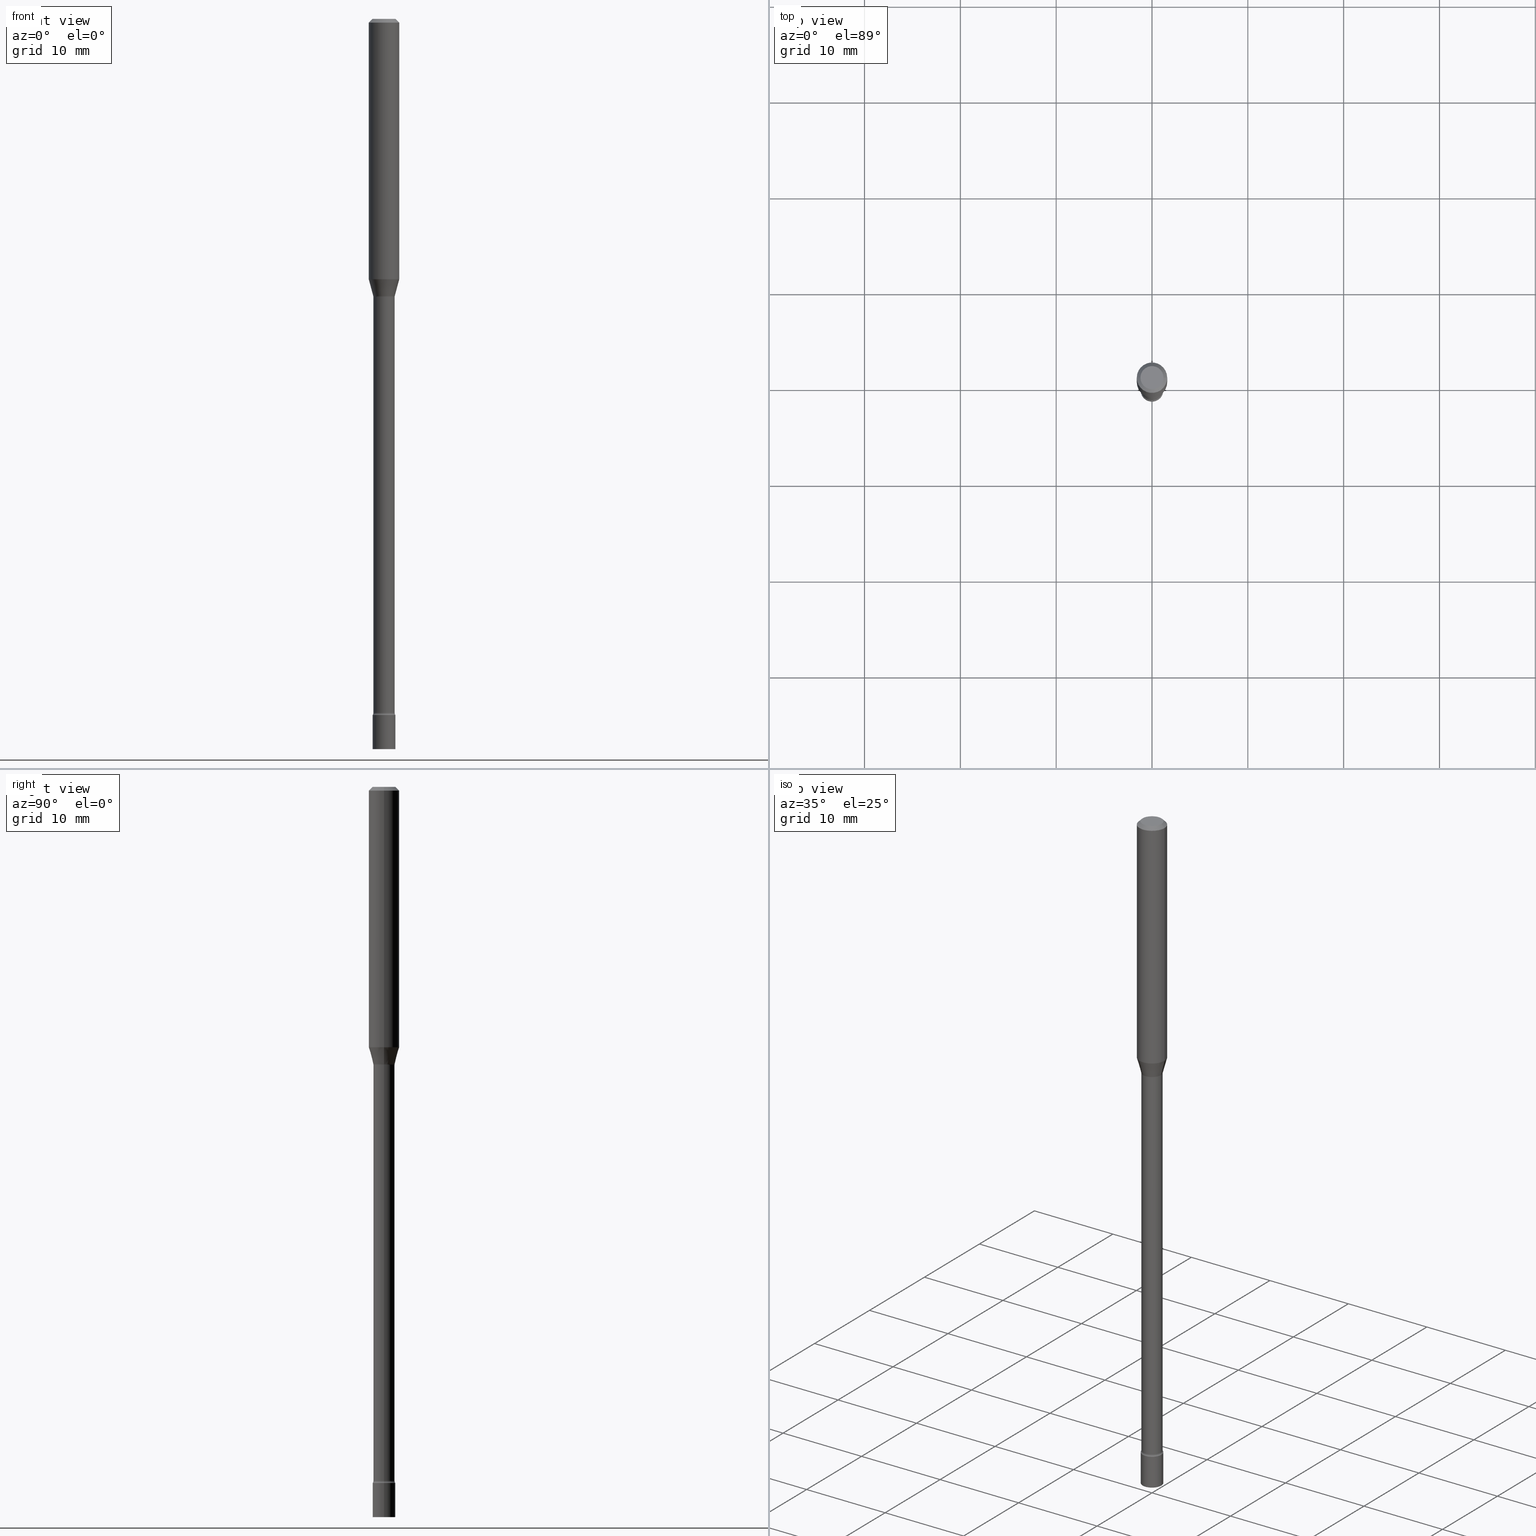
[diagram: canonical four-view strip — front | top / right | iso, engineering-drawing reading convention]
A machine part, canonical four-view strip (front | top / right | iso — engineering-drawing reading convention). The complete STEP part file that produces these views, byte-faithful:
ISO-10303-21;
HEADER;
FILE_DESCRIPTION (( 'STEP AP203' ),
    '1' );
FILE_NAME ('09744.STEP',
    '2024-03-09T01:33:44',
    ( '' ),
    ( '' ),
    'SwSTEP 2.0',
    'SolidWorks 2023',
    '' );
FILE_SCHEMA (( 'CONFIG_CONTROL_DESIGN' ));
ENDSEC;

DATA;
#1 = FACE_OUTER_BOUND ( 'NONE', #342, .T. ) ;
#2 = TOROIDAL_SURFACE ( 'NONE', #481, 0.05870000000000015483, 0.01499999999999998383 ) ;
#3 = CARTESIAN_POINT ( 'NONE',  ( -0.04421111260566398110, -3.659489882849310223E-15, -1.138092501787273170 ) ) ;
#4 = CC_DESIGN_DATE_AND_TIME_ASSIGNMENT ( #75, #158, ( #305 ) ) ;
#5 = ADVANCED_FACE ( 'NONE', ( #418 ), #59, .T. ) ;
#6 = EDGE_CURVE ( 'NONE', #29, #120, #460, .T. ) ;
#7 = AXIS2_PLACEMENT_3D ( 'NONE', #311, #399, #317 ) ;
#8 = ORIENTED_EDGE ( 'NONE', *, *, #85, .T. ) ;
#9 = ORIENTED_EDGE ( 'NONE', *, *, #20, .F. ) ;
#10 = ADVANCED_FACE ( 'NONE', ( #147 ), #318, .F. ) ;
#11 = LINE ( 'NONE', #404, #208 ) ;
#12 = DIRECTION ( 'NONE',  ( -2.445468806185136597E-29, 3.491481338843145583E-15, 1.000000000000000000 ) ) ;
#13 = CC_DESIGN_PERSON_AND_ORGANIZATION_ASSIGNMENT ( #146, #306, ( #302 ) ) ;
#14 = VECTOR ( 'NONE', #493, 39.37007874015748143 ) ;
#15 =( GEOMETRIC_REPRESENTATION_CONTEXT ( 3 ) GLOBAL_UNCERTAINTY_ASSIGNED_CONTEXT ( ( #328 ) ) GLOBAL_UNIT_ASSIGNED_CONTEXT ( ( #93, #58, #55 ) ) REPRESENTATION_CONTEXT ( 'NONE', 'WORKASPACE' ) );
#16 = DIRECTION ( 'NONE',  ( -2.445468806185136597E-29, 3.491481338843145583E-15, 1.000000000000000000 ) ) ;
#17 = ADVANCED_FACE ( 'NONE', ( #118 ), #337, .T. ) ;
#18 = DIRECTION ( 'NONE',  ( 1.000000000000000000, -6.982962677686267499E-15, 4.876176775795936353E-29 ) ) ;
#19 = ORIENTED_EDGE ( 'NONE', *, *, #109, .F. ) ;
#20 = EDGE_CURVE ( 'NONE', #179, #245, #271, .T. ) ;
#21 = CARTESIAN_POINT ( 'NONE',  ( -0.06250000000000000000, -1.449755637279586850E-15, -0.01500000000000003067 ) ) ;
#22 = DIRECTION ( 'NONE',  ( 1.000000000000000000, -6.982962677686270655E-15, 0.000000000000000000 ) ) ;
#23 = ORIENTED_EDGE ( 'NONE', *, *, #308, .F. ) ;
#24 = AXIS2_PLACEMENT_3D ( 'NONE', #61, #107, #25 ) ;
#25 = DIRECTION ( 'NONE',  ( -1.000000000000000000, 6.982962677686266711E-15, 0.000000000000000000 ) ) ;
#26 = ORIENTED_EDGE ( 'NONE', *, *, #437, .T. ) ;
#27 = DIRECTION ( 'NONE',  ( -2.445468806185136597E-29, 3.491481338843145583E-15, 1.000000000000000000 ) ) ;
#28 = ORIENTED_EDGE ( 'NONE', *, *, #308, .T. ) ;
#29 = VERTEX_POINT ( 'NONE', #40 ) ;
#30 = CIRCLE ( 'NONE', #234, 0.04649999999999999967 ) ;
#31 = DIRECTION ( 'NONE',  ( -0.7071067811865475727, 2.468850131082257455E-15, -0.7071067811865474617 ) ) ;
#32 = APPROVAL_ROLE ( '' ) ;
#33 = AXIS2_PLACEMENT_3D ( 'NONE', #408, #299, #172 ) ;
#34 = CARTESIAN_POINT ( 'NONE',  ( 2.783169711673978620E-29, -3.973628731867573835E-15, -1.138092501787273170 ) ) ;
#35 = CARTESIAN_POINT ( 'NONE',  ( 6.994040785689491519E-29, -9.985636629091396422E-15, -2.859999999999999876 ) ) ;
#36 = EDGE_CURVE ( 'NONE', #91, #214, #283, .T. ) ;
#37 = CALENDAR_DATE ( 2024, 8, 3 ) ;
#38 = DIRECTION ( 'NONE',  ( -2.438088387897960049E-29, 3.491481338843145188E-15, 1.000000000000000000 ) ) ;
#39 = CALENDAR_DATE ( 2024, 8, 3 ) ;
#40 = CARTESIAN_POINT ( 'NONE',  ( -0.04749999999999999362, 3.578768372314209027E-16, -2.891391092787141902E-17 ) ) ;
#41 = APPROVAL_ROLE ( '' ) ;
#42 = TOROIDAL_SURFACE ( 'NONE', #326, 0.05870000000000015483, 0.01499999999999998383 ) ;
#43 = CC_DESIGN_APPROVAL ( #355, ( #305 ) ) ;
#44 = DATE_TIME_ROLE ( 'creation_date' ) ;
#45 = PERSON_AND_ORGANIZATION ( #343, #125 ) ;
#46 = DIRECTION ( 'NONE',  ( -1.000000000000000000, 7.105427357600993970E-15, 0.000000000000000000 ) ) ;
#47 = FACE_OUTER_BOUND ( 'NONE', #336, .T. ) ;
#48 = AXIS2_PLACEMENT_3D ( 'NONE', #257, #49, #505 ) ;
#49 = DIRECTION ( 'NONE',  ( -2.445468806185136597E-29, 3.491481338843145583E-15, 1.000000000000000000 ) ) ;
#50 = VERTEX_POINT ( 'NONE', #357 ) ;
#51 = EDGE_CURVE ( 'NONE', #511, #341, #425, .T. ) ;
#52 = DIRECTION ( 'NONE',  ( -2.438088387897960049E-29, 3.491481338843145188E-15, 1.000000000000000000 ) ) ;
#53 = EDGE_CURVE ( 'NONE', #383, #468, #11, .T. ) ;
#54 = DIRECTION ( 'NONE',  ( 1.000000000000000000, -6.982962677686266711E-15, 4.876176775795935793E-29 ) ) ;
#55 =( NAMED_UNIT ( * ) SI_UNIT ( $, .STERADIAN. ) SOLID_ANGLE_UNIT ( ) );
#56 = TOROIDAL_SURFACE ( 'NONE', #114, 0.05870000000000000218, 0.01499999999999999424 ) ;
#57 = CARTESIAN_POINT ( 'NONE',  ( -0.05870000000000000218, -3.570095073968085005E-15, -1.141974787463811092 ) ) ;
#58 =( NAMED_UNIT ( * ) PLANE_ANGLE_UNIT ( ) SI_UNIT ( $, .RADIAN. ) );
#59 = CYLINDRICAL_SURFACE ( 'NONE', #319, 0.04370000000000008600 ) ;
#60 = APPROVAL ( #236, 'UNSPECIFIED' ) ;
#61 = CARTESIAN_POINT ( 'NONE',  ( 3.668203209277712094E-31, -5.237222008264728876E-17, -0.01500000000000003067 ) ) ;
#62 = DIRECTION ( 'NONE',  ( 1.000000000000000000, -6.982962677686265922E-15, 4.883557194083112901E-29 ) ) ;
#63 = ORIENTED_EDGE ( 'NONE', *, *, #401, .T. ) ;
#64 = CARTESIAN_POINT ( 'NONE',  ( 0.05870000000000015483, -1.036506648644833133E-14, -2.851273030308291823 ) ) ;
#65 = ORIENTED_EDGE ( 'NONE', *, *, #363, .F. ) ;
#66 = DESIGN_CONTEXT ( 'detailed design', #101, 'design' ) ;
#67 = LINE ( 'NONE', #348, #497 ) ;
#68 = DIRECTION ( 'NONE',  ( -2.445468806185136597E-29, 3.491481338843145583E-15, 1.000000000000000000 ) ) ;
#69 = EDGE_CURVE ( 'NONE', #50, #266, #74, .T. ) ;
#70 = ORIENTED_EDGE ( 'NONE', *, *, #51, .T. ) ;
#71 = DIRECTION ( 'NONE',  ( 1.000000000000000000, -6.982962677686280121E-15, 0.000000000000000000 ) ) ;
#72 = CARTESIAN_POINT ( 'NONE',  ( -0.04649999999999999273, -9.655234256962948358E-15, -2.859999999999999876 ) ) ;
#73 = CARTESIAN_POINT ( 'NONE',  ( 6.972699253535895201E-29, -9.955166577268146515E-15, -2.851273030308291823 ) ) ;
#74 = CIRCLE ( 'NONE', #33, 0.04370000000000016926 ) ;
#75 = DATE_AND_TIME ( #39, #415 ) ;
#76 = APPROVAL_DATE_TIME ( #397, #60 ) ;
#77 = CIRCLE ( 'NONE', #320, 0.04421111260566398110 ) ;
#78 = ORIENTED_EDGE ( 'NONE', *, *, #385, .F. ) ;
#79 = DIRECTION ( 'NONE',  ( -2.445468806185136877E-29, 3.491481338843145188E-15, 1.000000000000000000 ) ) ;
#80 = LINE ( 'NONE', #324, #14 ) ;
#81 = DIRECTION ( 'NONE',  ( -2.445468806185136597E-29, 3.491481338843145583E-15, 1.000000000000000000 ) ) ;
#82 = AXIS2_PLACEMENT_3D ( 'NONE', #34, #512, #261 ) ;
#83 = LOCAL_TIME ( 20, 33, 44.00000000000000000, #446 ) ;
#84 = EDGE_LOOP ( 'NONE', ( #65, #227, #211, #226 ) ) ;
#85 = EDGE_CURVE ( 'NONE', #468, #298, #189, .T. ) ;
#86 = CARTESIAN_POINT ( 'NONE',  ( 6.994040785689491519E-29, -9.985636629091396422E-15, -2.859999999999999876 ) ) ;
#87 = ORIENTED_EDGE ( 'NONE', *, *, #363, .T. ) ;
#88 = ADVANCED_FACE ( 'NONE', ( #419 ), #338, .T. ) ;
#89 = LINE ( 'NONE', #448, #244 ) ;
#90 = DIRECTION ( 'NONE',  ( -2.445468806185136597E-29, 3.491481338843145583E-15, 1.000000000000000000 ) ) ;
#91 = VERTEX_POINT ( 'NONE', #184 ) ;
#92 = APPLICATION_CONTEXT ( 'configuration controlled 3d designs of mechanical parts and assemblies' ) ;
#93 =( CONVERSION_BASED_UNIT ( 'INCH', #295 ) LENGTH_UNIT ( ) NAMED_UNIT ( #220 ) );
#94 = ORIENTED_EDGE ( 'NONE', *, *, #163, .F. ) ;
#95 = CIRCLE ( 'NONE', #160, 0.04370000000000000273 ) ;
#96 = CARTESIAN_POINT ( 'NONE',  ( 2.616254098990511009E-29, -3.735317474176651459E-15, -1.069837444817705263 ) ) ;
#97 = DIRECTION ( 'NONE',  ( -2.445468806185136597E-29, 3.491481338843145583E-15, 1.000000000000000000 ) ) ;
#98 = CARTESIAN_POINT ( 'NONE',  ( 0.04649999999999999967, -3.247077645124114474E-16, 2.267422200745110326E-30 ) ) ;
#99 = ORIENTED_EDGE ( 'NONE', *, *, #486, .T. ) ;
#100 = ADVANCED_FACE ( 'NONE', ( #217 ), #339, .T. ) ;
#101 = APPLICATION_CONTEXT ( 'configuration controlled 3d designs of mechanical parts and assemblies' ) ;
#102 = ORIENTED_EDGE ( 'NONE', *, *, #163, .T. ) ;
#103 = DIRECTION ( 'NONE',  ( -2.445468806185136597E-29, 3.491481338843145583E-15, 1.000000000000000000 ) ) ;
#104 = VERTEX_POINT ( 'NONE', #510 ) ;
#105 = CIRCLE ( 'NONE', #145, 0.01499999999999999424 ) ;
#106 = ADVANCED_FACE ( 'NONE', ( #344 ), #514, .T. ) ;
#107 = DIRECTION ( 'NONE',  ( 2.445468806185136597E-29, -3.491481338843145583E-15, -1.000000000000000000 ) ) ;
#108 = ORIENTED_EDGE ( 'NONE', *, *, #235, .F. ) ;
#109 = EDGE_CURVE ( 'NONE', #50, #179, #294, .T. ) ;
#110 = PERSON_AND_ORGANIZATION ( #343, #125 ) ;
#111 = DIRECTION ( 'NONE',  ( -2.445468806185136597E-29, 3.491481338843145583E-15, 1.000000000000000000 ) ) ;
#112 = EDGE_CURVE ( 'NONE', #341, #511, #509, .T. ) ;
#113 = CARTESIAN_POINT ( 'NONE',  ( 2.792663720192650802E-29, -3.987183659859262844E-15, -1.141974787463810870 ) ) ;
#114 = AXIS2_PLACEMENT_3D ( 'NONE', #171, #417, #332 ) ;
#115 = AXIS2_PLACEMENT_3D ( 'NONE', #490, #97, #218 ) ;
#116 = SECURITY_CLASSIFICATION_LEVEL ( 'unclassified' ) ;
#117 = PERSON_AND_ORGANIZATION ( #343, #125 ) ;
#118 = FACE_OUTER_BOUND ( 'NONE', #410, .T. ) ;
#119 = CIRCLE ( 'NONE', #250, 0.04370000000000016926 ) ;
#120 = VERTEX_POINT ( 'NONE', #474 ) ;
#121 = ADVANCED_FACE ( 'NONE', ( #209 ), #465, .T. ) ;
#122 = ORIENTED_EDGE ( 'NONE', *, *, #488, .F. ) ;
#123 = DIRECTION ( 'NONE',  ( 1.000000000000000000, -6.982962677686264344E-15, 0.000000000000000000 ) ) ;
#124 = AXIS2_PLACEMENT_3D ( 'NONE', #35, #476, #199 ) ;
#125 = ORGANIZATION ( 'UNSPECIFIED', 'UNSPECIFIED', '' ) ;
#126 = EDGE_LOOP ( 'NONE', ( #94, #447, #223, #451 ) ) ;
#127 = DIRECTION ( 'NONE',  ( 1.000000000000000000, -6.982962677686263555E-15, 0.000000000000000000 ) ) ;
#128 = PRODUCT_DEFINITION_SHAPE ( 'NONE', 'NONE',  #442 ) ;
#129 = DIRECTION ( 'NONE',  ( -2.445468806185136597E-29, 3.491481338843145583E-15, 1.000000000000000000 ) ) ;
#130 = DIRECTION ( 'NONE',  ( 2.438088387897960049E-29, -3.491481338843145188E-15, -1.000000000000000000 ) ) ;
#131 = ADVANCED_FACE ( 'NONE', ( #47 ), #170, .T. ) ;
#132 = FACE_OUTER_BOUND ( 'NONE', #292, .T. ) ;
#133 = ORIENTED_EDGE ( 'NONE', *, *, #175, .F. ) ;
#134 = DIRECTION ( 'NONE',  ( 1.000000000000000000, 0.000000000000000000, 0.000000000000000000 ) ) ;
#135 = DIRECTION ( 'NONE',  ( -2.445468806185136877E-29, 3.491481338843145188E-15, 1.000000000000000000 ) ) ;
#136 = ORIENTED_EDGE ( 'NONE', *, *, #289, .F. ) ;
#137 = AXIS2_PLACEMENT_3D ( 'NONE', #57, #507, #46 ) ;
#138 = EDGE_CURVE ( 'NONE', #369, #376, #273, .T. ) ;
#139 = ORIENTED_EDGE ( 'NONE', *, *, #276, .T. ) ;
#140 = EDGE_LOOP ( 'NONE', ( #8, #28, #361, #122 ) ) ;
#141 = DIRECTION ( 'NONE',  ( 1.000000000000000000, -6.982962677686258822E-15, 0.000000000000000000 ) ) ;
#142 = CARTESIAN_POINT ( 'NONE',  ( -0.04421111260566398110, -3.475359073587949533E-15, -1.138092501787273170 ) ) ;
#143 = DIRECTION ( 'NONE',  ( -2.445468806185136597E-29, 3.491481338843145583E-15, 1.000000000000000000 ) ) ;
#144 = CARTESIAN_POINT ( 'NONE',  ( 0.06250000000000000000, -4.888073874380389458E-16, -0.01500000000000003067 ) ) ;
#145 = AXIS2_PLACEMENT_3D ( 'NONE', #213, #378, #22 ) ;
#146 = PERSON_AND_ORGANIZATION ( #343, #125 ) ;
#147 = FACE_OUTER_BOUND ( 'NONE', #167, .T. ) ;
#148 = CARTESIAN_POINT ( 'NONE',  ( 0.000000000000000000, 0.000000000000000000, 0.000000000000000000 ) ) ;
#149 = CALENDAR_DATE ( 2024, 8, 3 ) ;
#150 = CARTESIAN_POINT ( 'NONE',  ( 2.783169711673978620E-29, -3.973628731867573835E-15, -1.138092501787273170 ) ) ;
#151 = CIRCLE ( 'NONE', #349, 0.04649999999999999967 ) ;
#152 = APPROVAL_PERSON_ORGANIZATION ( #482, #60, #41 ) ;
#153 = PERSON_AND_ORGANIZATION ( #343, #125 ) ;
#154 = CARTESIAN_POINT ( 'NONE',  ( 3.668203209277712094E-31, -5.237222008264728876E-17, -0.01500000000000003067 ) ) ;
#155 = COORDINATED_UNIVERSAL_TIME_OFFSET ( 5, 0, .BEHIND. ) ;
#156 = DIRECTION ( 'NONE',  ( -0.2588190451025210170, 5.211531920934547886E-15, 0.9659258262890682012 ) ) ;
#157 = CONICAL_SURFACE ( 'NONE', #210, 0.06250000000000000000, 0.7853981633974483900 ) ;
#158 = DATE_TIME_ROLE ( 'classification_date' ) ;
#159 = EDGE_CURVE ( 'NONE', #369, #298, #356, .T. ) ;
#160 = AXIS2_PLACEMENT_3D ( 'NONE', #113, #274, #127 ) ;
#161 = ORIENTED_EDGE ( 'NONE', *, *, #420, .F. ) ;
#162 = CARTESIAN_POINT ( 'NONE',  ( -0.04649999999999999967, -9.899637950681969902E-15, -2.859999999999999876 ) ) ;
#163 = EDGE_CURVE ( 'NONE', #104, #214, #440, .T. ) ;
#164 = DIRECTION ( 'NONE',  ( 1.000000000000000000, -6.982962677686274599E-15, 0.000000000000000000 ) ) ;
#165 = ORIENTED_EDGE ( 'NONE', *, *, #159, .T. ) ;
#166 = DIRECTION ( 'NONE',  ( -2.445468806185136597E-29, 3.491481338843145583E-15, 1.000000000000000000 ) ) ;
#167 = EDGE_LOOP ( 'NONE', ( #9, #303 ) ) ;
#168 = AXIS2_PLACEMENT_3D ( 'NONE', #280, #495, #221 ) ;
#169 = ORIENTED_EDGE ( 'NONE', *, *, #457, .T. ) ;
#170 = PLANE ( 'NONE',  #443 ) ;
#171 = CARTESIAN_POINT ( 'NONE',  ( 2.792663720192650802E-29, -3.987183659859263633E-15, -1.141974787463811092 ) ) ;
#172 = DIRECTION ( 'NONE',  ( 1.000000000000000000, -6.982962677686258822E-15, 0.000000000000000000 ) ) ;
#173 = CARTESIAN_POINT ( 'NONE',  ( 0.04370000000000000273, -4.292339128874152712E-15, -1.141974787463810870 ) ) ;
#174 = ORIENTED_EDGE ( 'NONE', *, *, #385, .T. ) ;
#175 = EDGE_CURVE ( 'NONE', #496, #91, #407, .T. ) ;
#176 = CIRCLE ( 'NONE', #515, 0.01499999999999998557 ) ;
#177 = FACE_OUTER_BOUND ( 'NONE', #126, .T. ) ;
#178 = CARTESIAN_POINT ( 'NONE',  ( -0.04370000000000016926, -9.649946829351966867E-15, -2.851273030308291823 ) ) ;
#179 = VERTEX_POINT ( 'NONE', #368 ) ;
#180 = AXIS2_PLACEMENT_3D ( 'NONE', #345, #103, #62 ) ;
#181 = AXIS2_PLACEMENT_3D ( 'NONE', #347, #129, #372 ) ;
#182 = ORIENTED_EDGE ( 'NONE', *, *, #480, .F. ) ;
#183 = DIRECTION ( 'NONE',  ( -2.445468806185136597E-29, 3.491481338843145583E-15, 1.000000000000000000 ) ) ;
#184 = CARTESIAN_POINT ( 'NONE',  ( 0.04649999999999999967, -1.031034439360380713E-14, -2.859999999999999876 ) ) ;
#185 = EDGE_CURVE ( 'NONE', #376, #428, #461, .T. ) ;
#186 = ORIENTED_EDGE ( 'NONE', *, *, #138, .T. ) ;
#187 = ORIENTED_EDGE ( 'NONE', *, *, #185, .T. ) ;
#188 = MANIFOLD_SOLID_BREP ( 'Body-Move/Copy2[2]', #362 ) ;
#189 = CIRCLE ( 'NONE', #224, 0.06250000000000000000 ) ;
#190 = APPROVAL ( #267, 'UNSPECIFIED' ) ;
#191 = CARTESIAN_POINT ( 'NONE',  ( 0.04649999999999999967, -1.079915178104184864E-14, -3.000000000000000444 ) ) ;
#192 = VECTOR ( 'NONE', #251, 39.37007874015748143 ) ;
#193 = LINE ( 'NONE', #395, #452 ) ;
#194 = MANIFOLD_SOLID_BREP ( 'Body-Move/Copy2[1]', #293 ) ;
#195 = DIRECTION ( 'NONE',  ( -2.445468806185136597E-29, 3.491481338843145583E-15, 1.000000000000000000 ) ) ;
#196 = COORDINATED_UNIVERSAL_TIME_OFFSET ( 5, 0, .BEHIND. ) ;
#197 = DIRECTION ( 'NONE',  ( 1.000000000000000000, -6.982962677686280121E-15, 0.000000000000000000 ) ) ;
#198 = ADVANCED_FACE ( 'NONE', ( #455 ), #56, .F. ) ;
#199 = DIRECTION ( 'NONE',  ( 1.000000000000000000, -6.982962677686280121E-15, 0.000000000000000000 ) ) ;
#200 = VECTOR ( 'NONE', #359, 39.37007874015748143 ) ;
#201 = CC_DESIGN_APPROVAL ( #60, ( #382 ) ) ;
#202 = APPROVAL_DATE_TIME ( #479, #355 ) ;
#203 = APPROVAL_STATUS ( 'not_yet_approved' ) ;
#204 = ADVANCED_FACE ( 'NONE', ( #132 ), #491, .F. ) ;
#205 = ORIENTED_EDGE ( 'NONE', *, *, #480, .T. ) ;
#206 = CARTESIAN_POINT ( 'NONE',  ( 7.336406418555409790E-29, -1.047444401652943635E-14, -3.000000000000000444 ) ) ;
#207 = AXIS2_PLACEMENT_3D ( 'NONE', #485, #38, #436 ) ;
#208 = VECTOR ( 'NONE', #494, 39.37007874015748143 ) ;
#209 = FACE_OUTER_BOUND ( 'NONE', #424, .T. ) ;
#210 = AXIS2_PLACEMENT_3D ( 'NONE', #256, #370, #286 ) ;
#211 = ORIENTED_EDGE ( 'NONE', *, *, #112, .T. ) ;
#212 =( LENGTH_UNIT ( ) NAMED_UNIT ( * ) SI_UNIT ( $, .METRE. ) );
#213 = CARTESIAN_POINT ( 'NONE',  ( 0.05870000000000000218, -4.397083569039447659E-15, -1.141974787463811092 ) ) ;
#214 = VERTEX_POINT ( 'NONE', #162 ) ;
#215 = ADVANCED_FACE ( 'NONE', ( #500 ), #405, .F. ) ;
#216 = DIRECTION ( 'NONE',  ( 1.000000000000000000, -6.982962677686267499E-15, 4.876681293081646444E-29 ) ) ;
#217 = FACE_OUTER_BOUND ( 'NONE', #384, .T. ) ;
#218 = DIRECTION ( 'NONE',  ( 1.000000000000000000, -6.982962677686280121E-15, 0.000000000000000000 ) ) ;
#219 = ORIENTED_EDGE ( 'NONE', *, *, #488, .T. ) ;
#220 = DIMENSIONAL_EXPONENTS ( 1.000000000000000000, 0.000000000000000000, 0.000000000000000000, 0.000000000000000000, 0.000000000000000000, 0.000000000000000000, 0.000000000000000000 ) ;
#221 = DIRECTION ( 'NONE',  ( 1.000000000000000000, -6.982962677686267499E-15, 4.876681293081646444E-29 ) ) ;
#222 = DIRECTION ( 'NONE',  ( 2.438088387897960049E-29, -3.491481338843145188E-15, -1.000000000000000000 ) ) ;
#223 = ORIENTED_EDGE ( 'NONE', *, *, #175, .T. ) ;
#224 = AXIS2_PLACEMENT_3D ( 'NONE', #96, #27, #255 ) ;
#225 = LOCAL_TIME ( 20, 33, 44.00000000000000000, #233 ) ;
#226 = ORIENTED_EDGE ( 'NONE', *, *, #374, .F. ) ;
#227 = ORIENTED_EDGE ( 'NONE', *, *, #289, .T. ) ;
#228 = DIRECTION ( 'NONE',  ( -1.000000000000000000, 7.105427357600997914E-15, 0.000000000000000000 ) ) ;
#229 = DIRECTION ( 'NONE',  ( 1.000000000000000000, -6.982962677686265133E-15, 4.883557194083112340E-29 ) ) ;
#230 = AXIS2_PLACEMENT_3D ( 'NONE', #516, #143, #216 ) ;
#231 = AXIS2_PLACEMENT_3D ( 'NONE', #501, #518, #307 ) ;
#232 = CARTESIAN_POINT ( 'NONE',  ( 0.000000000000000000, 0.000000000000000000, 0.000000000000000000 ) ) ;
#233 = COORDINATED_UNIVERSAL_TIME_OFFSET ( 5, 0, .BEHIND. ) ;
#234 = AXIS2_PLACEMENT_3D ( 'NONE', #86, #458, #71 ) ;
#235 = EDGE_CURVE ( 'NONE', #383, #428, #105, .T. ) ;
#236 = APPROVAL_STATUS ( 'not_yet_approved' ) ;
#237 = PERSON_AND_ORGANIZATION ( #343, #125 ) ;
#238 = CARTESIAN_POINT ( 'NONE',  ( -0.04649999999999999967, 3.304023721284465841E-16, -2.287304816968531530E-30 ) ) ;
#239 = CALENDAR_DATE ( 2024, 8, 3 ) ;
#240 = ORIENTED_EDGE ( 'NONE', *, *, #374, .T. ) ;
#241 = CC_DESIGN_DATE_AND_TIME_ASSIGNMENT ( #434, #44, ( #442 ) ) ;
#242 = LOCAL_TIME ( 20, 33, 44.00000000000000000, #155 ) ;
#243 = ORIENTED_EDGE ( 'NONE', *, *, #380, .F. ) ;
#244 = VECTOR ( 'NONE', #79, 39.37007874015748143 ) ;
#245 = VERTEX_POINT ( 'NONE', #72 ) ;
#246 = DIRECTION ( 'NONE',  ( 7.105427357601001859E-15, 1.000000000000000000, -3.491481338843145583E-15 ) ) ;
#247 = ORIENTED_EDGE ( 'NONE', *, *, #109, .T. ) ;
#248 = ADVANCED_FACE ( 'NONE', ( #386 ), #2, .F. ) ;
#249 = CARTESIAN_POINT ( 'NONE',  ( 0.000000000000000000, 0.000000000000000000, 0.000000000000000000 ) ) ;
#250 = AXIS2_PLACEMENT_3D ( 'NONE', #433, #195, #141 ) ;
#251 = DIRECTION ( 'NONE',  ( -2.445468806185136877E-29, 3.491481338843145188E-15, 1.000000000000000000 ) ) ;
#252 = CC_DESIGN_APPROVAL ( #190, ( #442 ) ) ;
#253 = EDGE_LOOP ( 'NONE', ( #182, #456, #247, #513 ) ) ;
#254 = LINE ( 'NONE', #432, #304 ) ;
#255 = DIRECTION ( 'NONE',  ( 1.000000000000000000, -6.982962677686270655E-15, 0.000000000000000000 ) ) ;
#256 = CARTESIAN_POINT ( 'NONE',  ( 3.668203209277712094E-31, -5.237222008264728876E-17, -0.01500000000000003067 ) ) ;
#257 = CARTESIAN_POINT ( 'NONE',  ( 2.792663720192650802E-29, -3.987183659859262844E-15, -1.141974787463810870 ) ) ;
#258 = ORIENTED_EDGE ( 'NONE', *, *, #270, .T. ) ;
#259 = PRODUCT_RELATED_PRODUCT_CATEGORY ( 'detail', '', ( #302 ) ) ;
#260 = ORIENTED_EDGE ( 'NONE', *, *, #6, .F. ) ;
#261 = DIRECTION ( 'NONE',  ( 1.000000000000000000, -6.982962677686264344E-15, 0.000000000000000000 ) ) ;
#262 = EDGE_LOOP ( 'NONE', ( #464, #186, #187, #108 ) ) ;
#263 = AXIS2_PLACEMENT_3D ( 'NONE', #206, #166, #282 ) ;
#264 = AXIS2_PLACEMENT_3D ( 'NONE', #375, #335, #134 ) ;
#265 = CARTESIAN_POINT ( 'NONE',  ( 0.000000000000000000, 0.000000000000000000, 0.000000000000000000 ) ) ;
#266 = VERTEX_POINT ( 'NONE', #178 ) ;
#267 = APPROVAL_STATUS ( 'not_yet_approved' ) ;
#268 = EDGE_CURVE ( 'NONE', #369, #383, #315, .T. ) ;
#269 = CARTESIAN_POINT ( 'NONE',  ( -0.04370000000000000273, -6.660667943036536836E-15, -1.141974787463810870 ) ) ;
#270 = EDGE_CURVE ( 'NONE', #245, #179, #151, .T. ) ;
#271 = CIRCLE ( 'NONE', #371, 0.04649999999999999967 ) ;
#272 = FACE_OUTER_BOUND ( 'NONE', #502, .T. ) ;
#273 = CIRCLE ( 'NONE', #137, 0.01499999999999999424 ) ;
#274 = DIRECTION ( 'NONE',  ( -2.445468806185136597E-29, 3.491481338843145583E-15, 1.000000000000000000 ) ) ;
#275 = PERSON_AND_ORGANIZATION_ROLE ( 'creator' ) ;
#276 = EDGE_CURVE ( 'NONE', #50, #428, #67, .T. ) ;
#277 = VECTOR ( 'NONE', #135, 39.37007874015748143 ) ;
#278 = APPROVAL_ROLE ( '' ) ;
#279 = EDGE_CURVE ( 'NONE', #104, #496, #413, .T. ) ;
#280 = CARTESIAN_POINT ( 'NONE',  ( 7.070806723891919892E-46, -1.009523804376275404E-31, -2.891391092786900929E-17 ) ) ;
#281 = EDGE_LOOP ( 'NONE', ( #136, #260, #240, #70 ) ) ;
#282 = DIRECTION ( 'NONE',  ( 1.000000000000000000, -6.982962677686280121E-15, 0.000000000000000000 ) ) ;
#283 = CIRCLE ( 'NONE', #124, 0.04649999999999999967 ) ;
#284 = ORIENTED_EDGE ( 'NONE', *, *, #69, .T. ) ;
#285 = DIRECTION ( 'NONE',  ( 1.000000000000000000, -6.982962677686266711E-15, 0.000000000000000000 ) ) ;
#286 = DIRECTION ( 'NONE',  ( -1.000000000000000000, 6.982962677686266711E-15, 0.000000000000000000 ) ) ;
#287 = ORIENTED_EDGE ( 'NONE', *, *, #53, .T. ) ;
#288 = DIRECTION ( 'NONE',  ( -1.000000000000000000, 6.982962677686265922E-15, -4.876176775795935793E-29 ) ) ;
#289 = EDGE_CURVE ( 'NONE', #120, #341, #80, .T. ) ;
#290 = CARTESIAN_POINT ( 'NONE',  ( 0.04421111260566398110, -4.282353281131910539E-15, -1.138092501787273170 ) ) ;
#291 = CARTESIAN_POINT ( 'NONE',  ( 2.616254098990511009E-29, -3.735317474176651459E-15, -1.069837444817705263 ) ) ;
#292 = EDGE_LOOP ( 'NONE', ( #365, #87 ) ) ;
#293 = CLOSED_SHELL ( 'NONE', ( #106, #360, #462, #131 ) ) ;
#294 = CIRCLE ( 'NONE', #435, 0.01499999999999998557 ) ;
#295 = LENGTH_MEASURE_WITH_UNIT ( LENGTH_MEASURE( 0.02539999999999999897 ), #212 );
#296 = ORIENTED_EDGE ( 'NONE', *, *, #53, .F. ) ;
#297 = CIRCLE ( 'NONE', #115, 0.04649999999999999967 ) ;
#298 = VERTEX_POINT ( 'NONE', #477 ) ;
#299 = DIRECTION ( 'NONE',  ( -2.445468806185136597E-29, 3.491481338843145583E-15, 1.000000000000000000 ) ) ;
#300 = AXIS2_PLACEMENT_3D ( 'NONE', #291, #12, #330 ) ;
#301 = CARTESIAN_POINT ( 'NONE',  ( 0.000000000000000000, 0.000000000000000000, 0.000000000000000000 ) ) ;
#302 = PRODUCT ( '09744', '09744', '', ( #421 ) ) ;
#303 = ORIENTED_EDGE ( 'NONE', *, *, #270, .F. ) ;
#304 = VECTOR ( 'NONE', #31, 39.37007874015748143 ) ;
#305 = SECURITY_CLASSIFICATION ( '', '', #116 ) ;
#306 = PERSON_AND_ORGANIZATION_ROLE ( 'design_owner' ) ;
#307 = DIRECTION ( 'NONE',  ( 1.000000000000000000, -6.982962677686266711E-15, 0.000000000000000000 ) ) ;
#308 = EDGE_CURVE ( 'NONE', #298, #511, #193, .T. ) ;
#309 = CIRCLE ( 'NONE', #300, 0.06250000000000000000 ) ;
#310 = PERSON_AND_ORGANIZATION_ROLE ( 'classification_officer' ) ;
#311 = CARTESIAN_POINT ( 'NONE',  ( 2.783169711673978620E-29, -3.973628731867573835E-15, -1.138092501787273170 ) ) ;
#312 = DIRECTION ( 'NONE',  ( -2.445468806185136877E-29, 3.491481338843145188E-15, 1.000000000000000000 ) ) ;
#313 = PLANE ( 'NONE',  #487 ) ;
#314 = PERSON_AND_ORGANIZATION_ROLE ( 'design_supplier' ) ;
#315 = CIRCLE ( 'NONE', #82, 0.04421111260566398110 ) ;
#316 = COORDINATED_UNIVERSAL_TIME_OFFSET ( 5, 0, .BEHIND. ) ;
#317 = DIRECTION ( 'NONE',  ( 1.000000000000000000, -6.982962677686264344E-15, 0.000000000000000000 ) ) ;
#318 = PLANE ( 'NONE',  #207 ) ;
#319 = AXIS2_PLACEMENT_3D ( 'NONE', #301, #68, #346 ) ;
#320 = AXIS2_PLACEMENT_3D ( 'NONE', #334, #183, #414 ) ;
#321 = ORIENTED_EDGE ( 'NONE', *, *, #185, .F. ) ;
#322 = DIRECTION ( 'NONE',  ( -2.445468806185136877E-29, 3.491481338843145188E-15, 1.000000000000000000 ) ) ;
#323 = EDGE_LOOP ( 'NONE', ( #26, #102, #331, #133 ) ) ;
#324 = CARTESIAN_POINT ( 'NONE',  ( 0.06250000000000000000, -4.811533449433680977E-16, -0.01500000000000003067 ) ) ;
#325 = DIRECTION ( 'NONE',  ( 1.000000000000000000, -6.982962677686266711E-15, 4.876176775795935793E-29 ) ) ;
#326 = AXIS2_PLACEMENT_3D ( 'NONE', #73, #392, #353 ) ;
#327 = CC_DESIGN_SECURITY_CLASSIFICATION ( #305, ( #382 ) ) ;
#328 = UNCERTAINTY_MEASURE_WITH_UNIT (LENGTH_MEASURE( 1.000000000000000082E-05 ), #93, 'distance_accuracy_value', 'NONE');
#329 = ADVANCED_FACE ( 'NONE', ( #272 ), #42, .F. ) ;
#330 = DIRECTION ( 'NONE',  ( 1.000000000000000000, -6.982962677686270655E-15, 0.000000000000000000 ) ) ;
#331 = ORIENTED_EDGE ( 'NONE', *, *, #36, .F. ) ;
#332 = DIRECTION ( 'NONE',  ( 1.000000000000000000, -6.982962677686265922E-15, 4.883557194083112901E-29 ) ) ;
#333 = ORIENTED_EDGE ( 'NONE', *, *, #138, .F. ) ;
#334 = CARTESIAN_POINT ( 'NONE',  ( 2.783169711673978620E-29, -3.973628731867573835E-15, -1.138092501787273170 ) ) ;
#335 = DIRECTION ( 'NONE',  ( 0.000000000000000000, 0.000000000000000000, 1.000000000000000000 ) ) ;
#336 = EDGE_LOOP ( 'NONE', ( #459, #508 ) ) ;
#337 = CONICAL_SURFACE ( 'NONE', #7, 0.04421111260566398110, 0.2617993877991496854 ) ;
#338 = CONICAL_SURFACE ( 'NONE', #24, 0.06250000000000000000, 0.7853981633974483900 ) ;
#339 = CYLINDRICAL_SURFACE ( 'NONE', #358, 0.06250000000000000000 ) ;
#340 = CARTESIAN_POINT ( 'NONE',  ( 6.994040785689491519E-29, -9.985636629091396422E-15, -2.859999999999999876 ) ) ;
#341 = VERTEX_POINT ( 'NONE', #144 ) ;
#342 = EDGE_LOOP ( 'NONE', ( #373, #99 ) ) ;
#343 = PERSON ( 'UNSPECIFIED', 'UNSPECIFIED', 'UNSPECIFIED', ('UNSPECIFIED'), ('UNSPECIFIED'), ('UNSPECIFIED') ) ;
#344 = FACE_OUTER_BOUND ( 'NONE', #323, .T. ) ;
#345 = CARTESIAN_POINT ( 'NONE',  ( 2.792663720192650802E-29, -3.987183659859263633E-15, -1.141974787463811092 ) ) ;
#346 = DIRECTION ( 'NONE',  ( 1.000000000000000000, -6.982962677686266711E-15, 4.876176775795935793E-29 ) ) ;
#347 = CARTESIAN_POINT ( 'NONE',  ( 0.000000000000000000, 0.000000000000000000, 0.000000000000000000 ) ) ;
#348 = CARTESIAN_POINT ( 'NONE',  ( 0.04370000000000008600, -3.051554690148904595E-16, 2.130889251022828193E-30 ) ) ;
#349 = AXIS2_PLACEMENT_3D ( 'NONE', #340, #352, #427 ) ;
#350 = LINE ( 'NONE', #377, #192 ) ;
#351 = FACE_OUTER_BOUND ( 'NONE', #387, .T. ) ;
#352 = DIRECTION ( 'NONE',  ( -2.445468806185136597E-29, 3.491481338843145583E-15, 1.000000000000000000 ) ) ;
#353 = DIRECTION ( 'NONE',  ( 1.000000000000000000, -6.982962677686265133E-15, 4.883557194083112340E-29 ) ) ;
#354 = PERSON_AND_ORGANIZATION_ROLE ( 'creator' ) ;
#355 = APPROVAL ( #203, 'UNSPECIFIED' ) ;
#356 = LINE ( 'NONE', #3, #517 ) ;
#357 = CARTESIAN_POINT ( 'NONE',  ( 0.04370000000000016926, -1.026032204628303796E-14, -2.851273030308291823 ) ) ;
#358 = AXIS2_PLACEMENT_3D ( 'NONE', #249, #16, #54 ) ;
#359 = DIRECTION ( 'NONE',  ( -2.445468806185136877E-29, 3.491481338843145188E-15, 1.000000000000000000 ) ) ;
#360 = ADVANCED_FACE ( 'NONE', ( #1 ), #313, .T. ) ;
#361 = ORIENTED_EDGE ( 'NONE', *, *, #112, .F. ) ;
#362 = CLOSED_SHELL ( 'NONE', ( #198, #121, #329, #88, #519, #429, #17, #100, #445, #204, #10, #248, #5, #215 ) ) ;
#363 = EDGE_CURVE ( 'NONE', #120, #29, #398, .T. ) ;
#364 = AXIS2_PLACEMENT_3D ( 'NONE', #232, #393, #325 ) ;
#365 = ORIENTED_EDGE ( 'NONE', *, *, #6, .T. ) ;
#366 = CC_DESIGN_PERSON_AND_ORGANIZATION_ASSIGNMENT ( #45, #275, ( #442 ) ) ;
#367 = DIRECTION ( 'NONE',  ( 1.000000000000000000, -6.982962677686265922E-15, 4.876176775795935793E-29 ) ) ;
#368 = CARTESIAN_POINT ( 'NONE',  ( 0.04649999999999999273, -1.031034439360380555E-14, -2.859999999999999876 ) ) ;
#369 = VERTEX_POINT ( 'NONE', #142 ) ;
#370 = DIRECTION ( 'NONE',  ( 2.445468806185136597E-29, -3.491481338843145583E-15, -1.000000000000000000 ) ) ;
#371 = AXIS2_PLACEMENT_3D ( 'NONE', #390, #483, #197 ) ;
#372 = DIRECTION ( 'NONE',  ( 1.000000000000000000, -6.982962677686266711E-15, 4.876176775795935793E-29 ) ) ;
#373 = ORIENTED_EDGE ( 'NONE', *, *, #36, .T. ) ;
#374 = EDGE_CURVE ( 'NONE', #29, #511, #254, .T. ) ;
#375 = CARTESIAN_POINT ( 'NONE',  ( 0.000000000000000000, 0.000000000000000000, 0.000000000000000000 ) ) ;
#376 = VERTEX_POINT ( 'NONE', #269 ) ;
#377 = CARTESIAN_POINT ( 'NONE',  ( 0.06250000000000000000, -4.364351673553916694E-16, 3.047610484872459871E-30 ) ) ;
#378 = DIRECTION ( 'NONE',  ( -6.982962677686266711E-15, -1.000000000000000000, 3.491481338843145583E-15 ) ) ;
#379 = ORIENTED_EDGE ( 'NONE', *, *, #420, .T. ) ;
#380 = EDGE_CURVE ( 'NONE', #266, #50, #119, .T. ) ;
#381 = AXIS2_PLACEMENT_3D ( 'NONE', #154, #81, #285 ) ;
#382 = PRODUCT_DEFINITION_FORMATION_WITH_SPECIFIED_SOURCE ( 'ANY', '', #302, .NOT_KNOWN. ) ;
#383 = VERTEX_POINT ( 'NONE', #290 ) ;
#384 = EDGE_LOOP ( 'NONE', ( #23, #169, #219, #453 ) ) ;
#385 = EDGE_CURVE ( 'NONE', #383, #369, #77, .T. ) ;
#386 = FACE_OUTER_BOUND ( 'NONE', #253, .T. ) ;
#387 = EDGE_LOOP ( 'NONE', ( #174, #165, #492, #296 ) ) ;
#388 = DIRECTION ( 'NONE',  ( -6.982962677686266711E-15, -1.000000000000000000, 3.491481338843145583E-15 ) ) ;
#389 = CARTESIAN_POINT ( 'NONE',  ( 0.06250000000000000000, -4.171752641532043129E-15, -1.069837444817705263 ) ) ;
#390 = CARTESIAN_POINT ( 'NONE',  ( 6.994040785689491519E-29, -9.985636629091396422E-15, -2.859999999999999876 ) ) ;
#391 = AXIS2_PLACEMENT_3D ( 'NONE', #411, #222, #403 ) ;
#392 = DIRECTION ( 'NONE',  ( -2.445468806185136597E-29, 3.491481338843145583E-15, 1.000000000000000000 ) ) ;
#393 = DIRECTION ( 'NONE',  ( -2.445468806185136597E-29, 3.491481338843145583E-15, 1.000000000000000000 ) ) ;
#394 = CC_DESIGN_PERSON_AND_ORGANIZATION_ASSIGNMENT ( #153, #314, ( #382 ) ) ;
#395 = CARTESIAN_POINT ( 'NONE',  ( -0.06250000000000000000, 4.440892098500626162E-16, -3.074334431409316114E-30 ) ) ;
#396 = APPROVAL_DATE_TIME ( #400, #190 ) ;
#397 = DATE_AND_TIME ( #484, #225 ) ;
#398 = CIRCLE ( 'NONE', #168, 0.04749999999999999362 ) ;
#399 = DIRECTION ( 'NONE',  ( -2.445468806185136597E-29, 3.491481338843145583E-15, 1.000000000000000000 ) ) ;
#400 = DATE_AND_TIME ( #149, #83 ) ;
#401 = EDGE_CURVE ( 'NONE', #428, #376, #95, .T. ) ;
#402 = ORIENTED_EDGE ( 'NONE', *, *, #268, .T. ) ;
#403 = DIRECTION ( 'NONE',  ( -1.000000000000000000, 6.982962677686265922E-15, -4.876176775795935793E-29 ) ) ;
#404 = CARTESIAN_POINT ( 'NONE',  ( 0.04421111260566398110, -4.282353281131910539E-15, -1.138092501787273170 ) ) ;
#405 = TOROIDAL_SURFACE ( 'NONE', #180, 0.05870000000000000218, 0.01499999999999999424 ) ;
#406 = ORIENTED_EDGE ( 'NONE', *, *, #380, .T. ) ;
#407 = LINE ( 'NONE', #98, #277 ) ;
#408 = CARTESIAN_POINT ( 'NONE',  ( 6.972699253535895201E-29, -9.955166577268146515E-15, -2.851273030308291823 ) ) ;
#409 = FACE_OUTER_BOUND ( 'NONE', #281, .T. ) ;
#410 = EDGE_LOOP ( 'NONE', ( #422, #402, #287, #470 ) ) ;
#411 = CARTESIAN_POINT ( 'NONE',  ( 3.316907271900976096E-16, 0.04749999999999999362, -1.803023190589839165E-16 ) ) ;
#412 = ORIENTED_EDGE ( 'NONE', *, *, #276, .F. ) ;
#413 = CIRCLE ( 'NONE', #263, 0.04649999999999999967 ) ;
#414 = DIRECTION ( 'NONE',  ( 1.000000000000000000, -6.982962677686264344E-15, 0.000000000000000000 ) ) ;
#415 = LOCAL_TIME ( 20, 33, 44.00000000000000000, #196 ) ;
#416 = APPLICATION_PROTOCOL_DEFINITION ( 'international standard', 'config_control_design', 1994, #92 ) ;
#417 = DIRECTION ( 'NONE',  ( -2.445468806185136597E-29, 3.491481338843145583E-15, 1.000000000000000000 ) ) ;
#418 = FACE_OUTER_BOUND ( 'NONE', #506, .T. ) ;
#419 = FACE_OUTER_BOUND ( 'NONE', #84, .T. ) ;
#420 = EDGE_CURVE ( 'NONE', #266, #376, #89, .T. ) ;
#421 = MECHANICAL_CONTEXT ( 'NONE', #92, 'mechanical' ) ;
#422 = ORIENTED_EDGE ( 'NONE', *, *, #159, .F. ) ;
#423 = DIRECTION ( 'NONE',  ( 1.000000000000000000, -6.982962677686267499E-15, 4.876176775795936353E-29 ) ) ;
#424 = EDGE_LOOP ( 'NONE', ( #284, #379, #489, #412 ) ) ;
#425 = CIRCLE ( 'NONE', #381, 0.06250000000000000000 ) ;
#426 = APPROVAL_PERSON_ORGANIZATION ( #110, #190, #32 ) ;
#427 = DIRECTION ( 'NONE',  ( 1.000000000000000000, -6.982962677686280121E-15, 0.000000000000000000 ) ) ;
#428 = VERTEX_POINT ( 'NONE', #173 ) ;
#429 = ADVANCED_FACE ( 'NONE', ( #351 ), #438, .T. ) ;
#430 = EDGE_LOOP ( 'NONE', ( #333, #78, #463, #63 ) ) ;
#431 = CARTESIAN_POINT ( 'NONE',  ( -0.05870000000000015483, -9.538077991376967887E-15, -2.851273030308291823 ) ) ;
#432 = CARTESIAN_POINT ( 'NONE',  ( -0.06250000000000000000, 3.840629472727443437E-16, -0.01500000000000003067 ) ) ;
#433 = CARTESIAN_POINT ( 'NONE',  ( 6.972699253535895201E-29, -9.955166577268146515E-15, -2.851273030308291823 ) ) ;
#434 = DATE_AND_TIME ( #37, #242 ) ;
#435 = AXIS2_PLACEMENT_3D ( 'NONE', #64, #388, #164 ) ;
#436 = DIRECTION ( 'NONE',  ( 1.000000000000000000, -6.982962677686265922E-15, 4.876176775795935793E-29 ) ) ;
#437 = EDGE_CURVE ( 'NONE', #496, #104, #297, .T. ) ;
#438 = CONICAL_SURFACE ( 'NONE', #472, 0.04421111260566398110, 0.2617993877991496854 ) ;
#439 = SHAPE_DEFINITION_REPRESENTATION ( #128, #466 ) ;
#440 = LINE ( 'NONE', #238, #200 ) ;
#441 = DIRECTION ( 'NONE',  ( -2.445468806185136597E-29, 3.491481338843145583E-15, 1.000000000000000000 ) ) ;
#442 = PRODUCT_DEFINITION ( 'UNKNOWN', '', #382, #66 ) ;
#443 = AXIS2_PLACEMENT_3D ( 'NONE', #450, #130, #288 ) ;
#444 = LOCAL_TIME ( 20, 33, 44.00000000000000000, #316 ) ;
#445 = ADVANCED_FACE ( 'NONE', ( #409 ), #157, .T. ) ;
#446 = COORDINATED_UNIVERSAL_TIME_OFFSET ( 5, 0, .BEHIND. ) ;
#447 = ORIENTED_EDGE ( 'NONE', *, *, #279, .T. ) ;
#448 = CARTESIAN_POINT ( 'NONE',  ( -0.04370000000000008600, 3.105071755271643923E-16, -2.149574634441398029E-30 ) ) ;
#449 = CC_DESIGN_PERSON_AND_ORGANIZATION_ASSIGNMENT ( #475, #310, ( #305 ) ) ;
#450 = CARTESIAN_POINT ( 'NONE',  ( 3.247077645124847129E-16, 0.04649999999998952888, -3.000000000000000444 ) ) ;
#451 = ORIENTED_EDGE ( 'NONE', *, *, #486, .F. ) ;
#452 = VECTOR ( 'NONE', #312, 39.37007874015748143 ) ;
#453 = ORIENTED_EDGE ( 'NONE', *, *, #51, .F. ) ;
#454 = FACE_OUTER_BOUND ( 'NONE', #140, .T. ) ;
#455 = FACE_OUTER_BOUND ( 'NONE', #262, .T. ) ;
#456 = ORIENTED_EDGE ( 'NONE', *, *, #69, .F. ) ;
#457 = EDGE_CURVE ( 'NONE', #298, #468, #309, .T. ) ;
#458 = DIRECTION ( 'NONE',  ( -2.445468806185136597E-29, 3.491481338843145583E-15, 1.000000000000000000 ) ) ;
#459 = ORIENTED_EDGE ( 'NONE', *, *, #437, .F. ) ;
#460 = CIRCLE ( 'NONE', #230, 0.04749999999999999362 ) ;
#461 = CIRCLE ( 'NONE', #48, 0.04370000000000000273 ) ;
#462 = ADVANCED_FACE ( 'NONE', ( #177 ), #499, .T. ) ;
#463 = ORIENTED_EDGE ( 'NONE', *, *, #235, .T. ) ;
#464 = ORIENTED_EDGE ( 'NONE', *, *, #268, .F. ) ;
#465 = CYLINDRICAL_SURFACE ( 'NONE', #364, 0.04370000000000008600 ) ;
#466 = ADVANCED_BREP_SHAPE_REPRESENTATION ( '09744', ( #194, #188, #264 ), #15 ) ;
#467 = AXIS2_PLACEMENT_3D ( 'NONE', #148, #90, #18 ) ;
#468 = VERTEX_POINT ( 'NONE', #389 ) ;
#469 = AXIS2_PLACEMENT_3D ( 'NONE', #265, #504, #423 ) ;
#470 = ORIENTED_EDGE ( 'NONE', *, *, #457, .F. ) ;
#471 = APPLICATION_PROTOCOL_DEFINITION ( 'international standard', 'config_control_design', 1994, #101 ) ;
#472 = AXIS2_PLACEMENT_3D ( 'NONE', #150, #441, #123 ) ;
#473 = CARTESIAN_POINT ( 'NONE',  ( 6.972699253535895201E-29, -9.955166577268146515E-15, -2.851273030308291823 ) ) ;
#474 = CARTESIAN_POINT ( 'NONE',  ( 0.04749999999999999362, -4.035134999187579609E-16, -2.891391092786643933E-17 ) ) ;
#475 = PERSON_AND_ORGANIZATION ( #343, #125 ) ;
#476 = DIRECTION ( 'NONE',  ( -2.445468806185136597E-29, 3.491481338843145583E-15, 1.000000000000000000 ) ) ;
#477 = CARTESIAN_POINT ( 'NONE',  ( -0.06250000000000000000, -3.291228264326588843E-15, -1.069837444817705263 ) ) ;
#478 = CARTESIAN_POINT ( 'NONE',  ( 6.994040785689491519E-29, -9.985636629091396422E-15, -2.859999999999999876 ) ) ;
#479 = DATE_AND_TIME ( #239, #444 ) ;
#480 = EDGE_CURVE ( 'NONE', #266, #245, #176, .T. ) ;
#481 = AXIS2_PLACEMENT_3D ( 'NONE', #473, #111, #229 ) ;
#482 = PERSON_AND_ORGANIZATION ( #343, #125 ) ;
#483 = DIRECTION ( 'NONE',  ( -2.445468806185136597E-29, 3.491481338843145583E-15, 1.000000000000000000 ) ) ;
#484 = CALENDAR_DATE ( 2024, 8, 3 ) ;
#485 = CARTESIAN_POINT ( 'NONE',  ( 3.247077645124813109E-16, 0.04649999999999001460, -2.859999999999999876 ) ) ;
#486 = EDGE_CURVE ( 'NONE', #214, #91, #30, .T. ) ;
#487 = AXIS2_PLACEMENT_3D ( 'NONE', #478, #52, #367 ) ;
#488 = EDGE_CURVE ( 'NONE', #468, #341, #350, .T. ) ;
#489 = ORIENTED_EDGE ( 'NONE', *, *, #401, .F. ) ;
#490 = CARTESIAN_POINT ( 'NONE',  ( 7.336406418555409790E-29, -1.047444401652943635E-14, -3.000000000000000444 ) ) ;
#491 = PLANE ( 'NONE',  #391 ) ;
#492 = ORIENTED_EDGE ( 'NONE', *, *, #85, .F. ) ;
#493 = DIRECTION ( 'NONE',  ( 0.7071067811865475727, -7.319954787623256045E-15, -0.7071067811865474617 ) ) ;
#494 = DIRECTION ( 'NONE',  ( 0.2588190451025210170, 1.565188264969624531E-15, 0.9659258262890682012 ) ) ;
#495 = DIRECTION ( 'NONE',  ( -2.445468806185136597E-29, 3.491481338843145583E-15, 1.000000000000000000 ) ) ;
#496 = VERTEX_POINT ( 'NONE', #191 ) ;
#497 = VECTOR ( 'NONE', #322, 39.37007874015748143 ) ;
#498 = APPROVAL_PERSON_ORGANIZATION ( #237, #355, #278 ) ;
#499 = CYLINDRICAL_SURFACE ( 'NONE', #467, 0.04649999999999999967 ) ;
#500 = FACE_OUTER_BOUND ( 'NONE', #430, .T. ) ;
#501 = CARTESIAN_POINT ( 'NONE',  ( 3.668203209277712094E-31, -5.237222008264728876E-17, -0.01500000000000003067 ) ) ;
#502 = EDGE_LOOP ( 'NONE', ( #243, #205, #258, #19 ) ) ;
#503 = CC_DESIGN_PERSON_AND_ORGANIZATION_ASSIGNMENT ( #117, #354, ( #382 ) ) ;
#504 = DIRECTION ( 'NONE',  ( -2.445468806185136597E-29, 3.491481338843145583E-15, 1.000000000000000000 ) ) ;
#505 = DIRECTION ( 'NONE',  ( 1.000000000000000000, -6.982962677686263555E-15, 0.000000000000000000 ) ) ;
#506 = EDGE_LOOP ( 'NONE', ( #161, #406, #139, #321 ) ) ;
#507 = DIRECTION ( 'NONE',  ( 7.105427357601001859E-15, 1.000000000000000000, -3.491481338843145583E-15 ) ) ;
#508 = ORIENTED_EDGE ( 'NONE', *, *, #279, .F. ) ;
#509 = CIRCLE ( 'NONE', #231, 0.06250000000000000000 ) ;
#510 = CARTESIAN_POINT ( 'NONE',  ( -0.04649999999999999967, -9.899637950681969902E-15, -3.000000000000000444 ) ) ;
#511 = VERTEX_POINT ( 'NONE', #21 ) ;
#512 = DIRECTION ( 'NONE',  ( -2.445468806185136597E-29, 3.491481338843145583E-15, 1.000000000000000000 ) ) ;
#513 = ORIENTED_EDGE ( 'NONE', *, *, #20, .T. ) ;
#514 = CYLINDRICAL_SURFACE ( 'NONE', #469, 0.04649999999999999967 ) ;
#515 = AXIS2_PLACEMENT_3D ( 'NONE', #431, #246, #228 ) ;
#516 = CARTESIAN_POINT ( 'NONE',  ( 7.070806723891919892E-46, -1.009523804376275404E-31, -2.891391092786900929E-17 ) ) ;
#517 = VECTOR ( 'NONE', #156, 39.37007874015748143 ) ;
#518 = DIRECTION ( 'NONE',  ( -2.445468806185136597E-29, 3.491481338843145583E-15, 1.000000000000000000 ) ) ;
#519 = ADVANCED_FACE ( 'NONE', ( #454 ), #520, .T. ) ;
#520 = CYLINDRICAL_SURFACE ( 'NONE', #181, 0.06250000000000000000 ) ;
ENDSEC;
END-ISO-10303-21;
